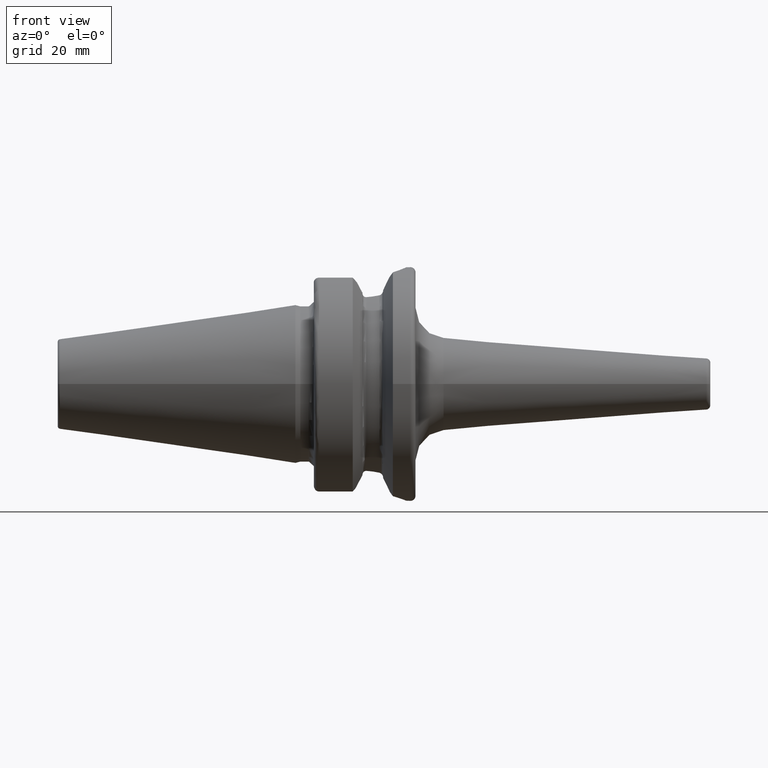
[diagram: clean part render]
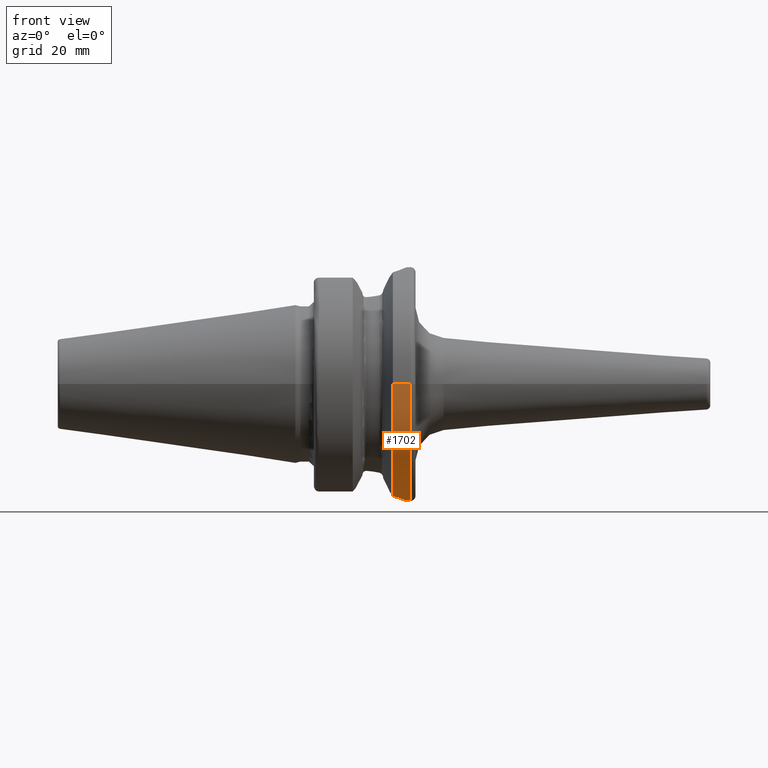
[diagram: same view with one face highlighted and labeled with its STEP entity id]
A machine part, front view. The second image highlights one B-rep face of the part: STEP entity #1702.
In plain terms, the highlighted cylindrical surface (partial cylindrical patch) has radius 22.99 mm, axis along (1, 0, 0).
Its self-contained STEP definition (entity closure, byte-faithful):
#226=CARTESIAN_POINT('',(1.754907584126E1,0.E0,0.E0));
#227=DIRECTION('',(1.E0,0.E0,0.E0));
#228=DIRECTION('',(0.E0,-1.E0,0.E0));
#229=AXIS2_PLACEMENT_3D('',#226,#227,#228);
#231=DIRECTION('',(-1.E0,0.E0,0.E0));
#232=VECTOR('',#231,3.450924158743E0);
#233=CARTESIAN_POINT('',(2.1E1,-2.299E1,0.E0));
#234=LINE('',#233,#232);
#235=CARTESIAN_POINT('',(2.1E1,0.E0,0.E0));
#236=DIRECTION('',(-1.E0,0.E0,0.E0));
#237=DIRECTION('',(0.E0,1.E0,0.E0));
#238=AXIS2_PLACEMENT_3D('',#235,#236,#237);
#240=DIRECTION('',(-1.E0,0.E0,0.E0));
#241=VECTOR('',#240,3.450924158743E0);
#242=CARTESIAN_POINT('',(2.1E1,2.299E1,0.E0));
#243=LINE('',#242,#241);
#244=CARTESIAN_POINT('',(1.754907584126E1,0.E0,0.E0));
#245=DIRECTION('',(1.E0,0.E0,0.E0));
#246=DIRECTION('',(0.E0,2.802529554758E-1,-9.599261851554E-1));
#247=AXIS2_PLACEMENT_3D('',#244,#245,#246);
#249=CARTESIAN_POINT('',(1.754907584126E1,-6.443032679053E0,-2.206869796560E1));
#250=CARTESIAN_POINT('',(1.786271985380E1,-6.137144475219E0,-2.215797578543E1));
#251=CARTESIAN_POINT('',(1.853665578236E1,-5.374548977043E0,-2.236451274895E1));
#252=CARTESIAN_POINT('',(1.936712839161E1,-4.029788715451E0,-2.265199246148E1));
#253=CARTESIAN_POINT('',(1.997216238869E1,-2.437664061447E0,-2.288017513126E1));
#254=CARTESIAN_POINT('',(2.026640464016E1,-7.819234003848E-1,
-2.299647639092E1));
#255=CARTESIAN_POINT('',(2.025937470497E1,8.604606154084E-1,-2.299365796640E1));
#256=CARTESIAN_POINT('',(1.995066324788E1,2.514291439245E0,-2.287181374420E1));
#257=CARTESIAN_POINT('',(1.933142704745E1,4.101498104809E0,-2.263899626017E1));
#258=CARTESIAN_POINT('',(1.850265114850E1,5.416956077958E0,-2.235355747126E1));
#259=CARTESIAN_POINT('',(1.784325205008E1,6.156098603265E0,-2.215244675374E1));
#260=CARTESIAN_POINT('',(1.754907584126E1,6.443015446388E0,-2.206870299672E1));
#1194=CARTESIAN_POINT('',(1.754907584126E1,2.299E1,0.E0));
#1196=VERTEX_POINT('',#1194);
#1198=CARTESIAN_POINT('',(1.754907584126E1,-2.299E1,0.E0));
#1199=CARTESIAN_POINT('',(1.754907584126E1,-6.443032679053E0,
-2.206869796560E1));
#1200=VERTEX_POINT('',#1198);
#1201=VERTEX_POINT('',#1199);
#1202=CARTESIAN_POINT('',(2.1E1,2.299E1,0.E0));
#1203=VERTEX_POINT('',#1202);
#1204=CARTESIAN_POINT('',(2.1E1,-2.299E1,0.E0));
#1205=VERTEX_POINT('',#1204);
#1208=CARTESIAN_POINT('',(1.754907584126E1,6.443015446388E0,-2.206870299672E1));
#1209=VERTEX_POINT('',#1208);
#1683=CARTESIAN_POINT('',(-5.192E1,0.E0,0.E0));
#1684=DIRECTION('',(1.E0,0.E0,0.E0));
#1685=DIRECTION('',(0.E0,-1.E0,0.E0));
#1686=AXIS2_PLACEMENT_3D('',#1683,#1684,#1685);
#1687=CYLINDRICAL_SURFACE('',#1686,2.299E1);
#1689=ORIENTED_EDGE('',*,*,#1688,.F.);
#1691=ORIENTED_EDGE('',*,*,#1690,.F.);
#1693=ORIENTED_EDGE('',*,*,#1692,.F.);
#1695=ORIENTED_EDGE('',*,*,#1694,.T.);
#1697=ORIENTED_EDGE('',*,*,#1696,.F.);
#1699=ORIENTED_EDGE('',*,*,#1698,.F.);
#1700=EDGE_LOOP('',(#1689,#1691,#1693,#1695,#1697,#1699));
#1701=FACE_OUTER_BOUND('',#1700,.F.);
#1702=ADVANCED_FACE('',(#1701),#1687,.T.);
#230=CIRCLE('',#229,2.299E1);
#239=CIRCLE('',#238,2.299E1);
#248=CIRCLE('',#247,2.299E1);
#261=B_SPLINE_CURVE_WITH_KNOTS('',3,(#249,#250,#251,#252,#253,#254,#255,#256,
#257,#258,#259,#260),.UNSPECIFIED.,.F.,.F.,(4,1,1,1,1,1,1,1,1,4),(0.E0,
8.913472908207E-2,2.073099217339E-1,3.254851143857E-1,4.436603070375E-1,
5.618354996894E-1,6.800106923412E-1,7.981858849930E-1,9.163610776448E-1,1.E0),
.UNSPECIFIED.);
#1688=EDGE_CURVE('',#1200,#1201,#230,.T.);
#1690=EDGE_CURVE('',#1205,#1200,#234,.T.);
#1692=EDGE_CURVE('',#1203,#1205,#239,.T.);
#1694=EDGE_CURVE('',#1203,#1196,#243,.T.);
#1696=EDGE_CURVE('',#1209,#1196,#248,.T.);
#1698=EDGE_CURVE('',#1201,#1209,#261,.T.);